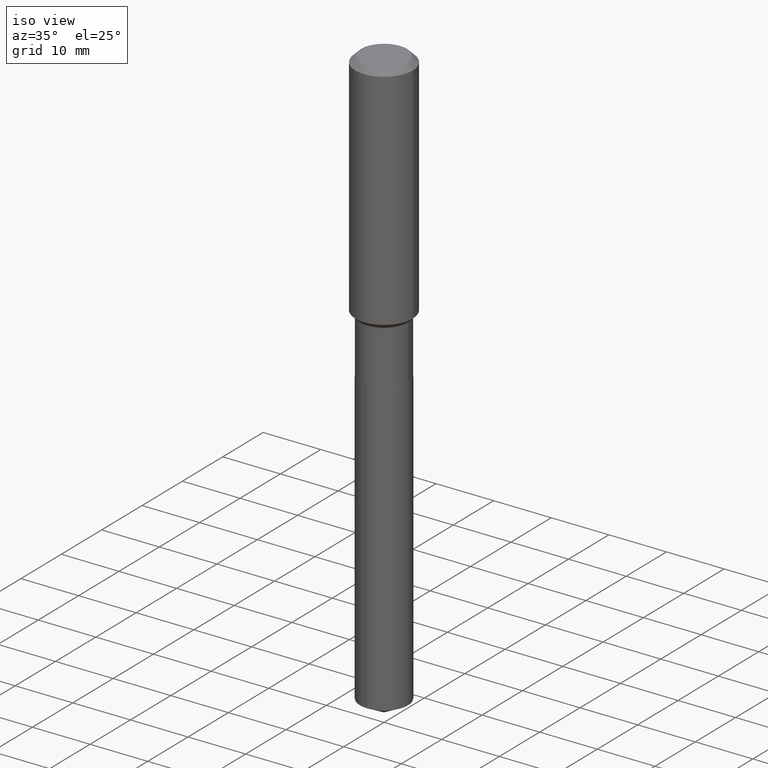
[diagram: clean part render]
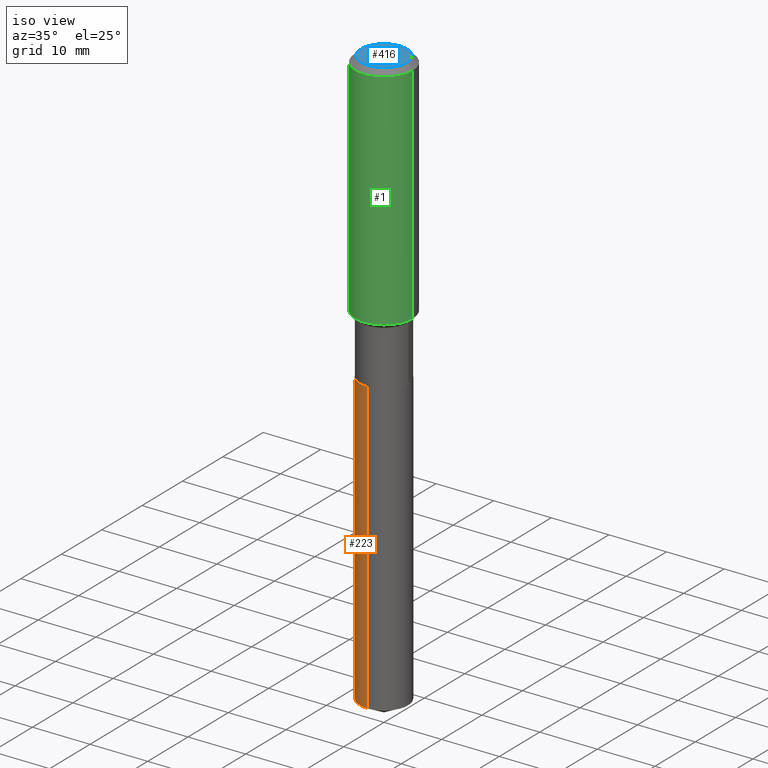
[diagram: same view with three faces highlighted in distinct colors, each labeled with its STEP entity id]
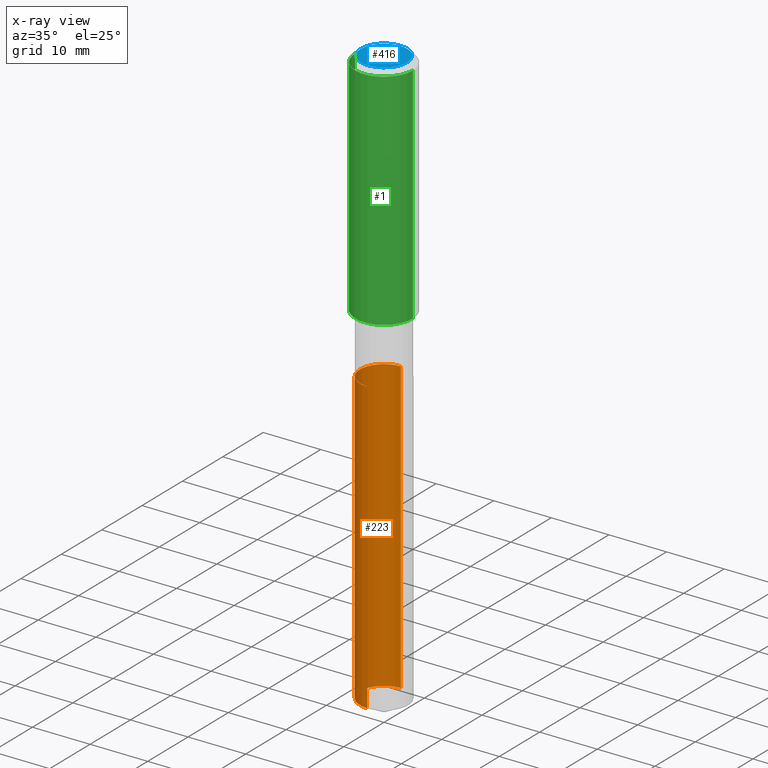
[diagram: x-ray of the same camera — body ghosted, the three highlighted faces saturated]
A machine part, iso view with three faces highlighted in distinct colors.
The next image is the same camera in x-ray (body ghosted, the three faces saturated) — at least one of them is partly hidden behind the body in this view.
Their STEP definitions:

[orange] entity #223 — the highlighted cylindrical surface (edge-blend (fillet) strip) has radius 4.1669 mm, axis along (-0, 0, 1).
#20 = LINE ( 'NONE', #93, #163 ) ;
#23 = CYLINDRICAL_SURFACE ( 'NONE', #34, 0.1640500000000000014 ) ;
#34 = AXIS2_PLACEMENT_3D ( 'NONE', #334, #172, #363 ) ;
#38 = AXIS2_PLACEMENT_3D ( 'NONE', #257, #184, #267 ) ;
#53 = ORIENTED_EDGE ( 'NONE', *, *, #302, .F. ) ;
#57 = EDGE_CURVE ( 'NONE', #280, #244, #73, .T. ) ;
#58 = VECTOR ( 'NONE', #455, 39.37007874015748143 ) ;
#73 = LINE ( 'NONE', #195, #58 ) ;
#83 = CARTESIAN_POINT ( 'NONE',  ( 1.165645358014541000E-15, 0.1640499999999861236, -3.967773067735935744 ) ) ;
#93 = CARTESIAN_POINT ( 'NONE',  ( 1.165645358014492485E-15, 0.1640499999999930625, -1.981100000000000305 ) ) ;
#109 = CARTESIAN_POINT ( 'NONE',  ( -1.145555027274334830E-15, -0.1640500000000138514, -3.967773067735934855 ) ) ;
#150 = EDGE_CURVE ( 'NONE', #486, #280, #274, .T. ) ;
#163 = VECTOR ( 'NONE', #249, 39.37007874015748143 ) ;
#172 = DIRECTION ( 'NONE',  ( -2.445536461183793297E-29, 3.491384453034385749E-15, 1.000000000000000000 ) ) ;
#184 = DIRECTION ( 'NONE',  ( -2.445536461183793297E-29, 3.491384453034385749E-15, 1.000000000000000000 ) ) ;
#195 = CARTESIAN_POINT ( 'NONE',  ( -1.145555027274383345E-15, -0.1640500000000069125, -1.981099999999999195 ) ) ;
#202 = ORIENTED_EDGE ( 'NONE', *, *, #150, .T. ) ;
#223 = ADVANCED_FACE ( 'NONE', ( #245 ), #23, .T. ) ;
#241 = VERTEX_POINT ( 'NONE', #397 ) ;
#244 = VERTEX_POINT ( 'NONE', #445 ) ;
#245 = FACE_OUTER_BOUND ( 'NONE', #435, .T. ) ;
#249 = DIRECTION ( 'NONE',  ( -2.445536461183793297E-29, 3.491384453034385749E-15, 1.000000000000000000 ) ) ;
#250 = DIRECTION ( 'NONE',  ( -6.982962677686265133E-15, -1.000000000000000000, 3.330506545156066257E-15 ) ) ;
#257 = CARTESIAN_POINT ( 'NONE',  ( 4.844718251933373369E-29, -6.916973680382155175E-15, -1.981099999999999861 ) ) ;
#263 = EDGE_CURVE ( 'NONE', #486, #241, #20, .T. ) ;
#264 = CIRCLE ( 'NONE', #38, 0.1640500000000000014 ) ;
#267 = DIRECTION ( 'NONE',  ( -6.982962677686265133E-15, -1.000000000000000000, 3.330506545156066257E-15 ) ) ;
#270 = ORIENTED_EDGE ( 'NONE', *, *, #263, .F. ) ;
#274 = CIRCLE ( 'NONE', #406, 0.1640500000000000014 ) ;
#280 = VERTEX_POINT ( 'NONE', #109 ) ;
#302 = EDGE_CURVE ( 'NONE', #241, #244, #264, .T. ) ;
#320 = ORIENTED_EDGE ( 'NONE', *, *, #57, .T. ) ;
#329 = CARTESIAN_POINT ( 'NONE',  ( 9.703199675533465225E-29, -1.385321314233753012E-14, -3.967773067735935300 ) ) ;
#334 = CARTESIAN_POINT ( 'NONE',  ( 4.844718251933373369E-29, -6.916973680382155175E-15, -1.981099999999999861 ) ) ;
#363 = DIRECTION ( 'NONE',  ( -6.982962677686265133E-15, -1.000000000000000000, 3.330506545156066257E-15 ) ) ;
#397 = CARTESIAN_POINT ( 'NONE',  ( 1.165645358014541395E-15, 0.1640499999999930625, -1.981100000000000305 ) ) ;
#406 = AXIS2_PLACEMENT_3D ( 'NONE', #329, #412, #250 ) ;
#412 = DIRECTION ( 'NONE',  ( -2.445536461183793297E-29, 3.491384453034385749E-15, 1.000000000000000000 ) ) ;
#435 = EDGE_LOOP ( 'NONE', ( #270, #202, #320, #53 ) ) ;
#445 = CARTESIAN_POINT ( 'NONE',  ( -1.145555027274383345E-15, -0.1640500000000069125, -1.981099999999999195 ) ) ;
#455 = DIRECTION ( 'NONE',  ( -2.445536461183793297E-29, 3.491384453034385749E-15, 1.000000000000000000 ) ) ;
#486 = VERTEX_POINT ( 'NONE', #83 ) ;

[blue] entity #416 — the highlighted planar face has unit normal (0, -0, -1).
#16 = VERTEX_POINT ( 'NONE', #265 ) ;
#24 = DIRECTION ( 'NONE',  ( 1.000000000000000000, -6.982962677686265922E-15, 4.876223630392693006E-29 ) ) ;
#63 = CARTESIAN_POINT ( 'NONE',  ( -9.427742298522567634E-47, 1.346031739168368355E-32, 3.855188123715870730E-18 ) ) ;
#140 = CARTESIAN_POINT ( 'NONE',  ( -4.713871149261283817E-47, 6.730158695841841775E-33, 1.927594061857935365E-18 ) ) ;
#159 = EDGE_LOOP ( 'NONE', ( #313, #324 ) ) ;
#160 = AXIS2_PLACEMENT_3D ( 'NONE', #474, #211, #24 ) ;
#187 = EDGE_CURVE ( 'NONE', #16, #464, #446, .T. ) ;
#207 = DIRECTION ( 'NONE',  ( 1.000000000000000000, -6.982962677686265922E-15, 4.876223630392693006E-29 ) ) ;
#208 = CARTESIAN_POINT ( 'NONE',  ( -0.1574800000000000089, 1.168406772637159815E-15, 3.855188123707939751E-18 ) ) ;
#211 = DIRECTION ( 'NONE',  ( -2.445468806185136597E-29, 3.491481338843145583E-15, 1.000000000000000000 ) ) ;
#214 = EDGE_CURVE ( 'NONE', #464, #16, #430, .T. ) ;
#265 = CARTESIAN_POINT ( 'NONE',  ( 0.1574800000000000089, -1.284169937930321386E-15, 3.855188123724205385E-18 ) ) ;
#293 = DIRECTION ( 'NONE',  ( 2.438088387897960049E-29, -3.491481338843145188E-15, -1.000000000000000000 ) ) ;
#295 = PLANE ( 'NONE',  #444 ) ;
#313 = ORIENTED_EDGE ( 'NONE', *, *, #214, .T. ) ;
#321 = AXIS2_PLACEMENT_3D ( 'NONE', #63, #478, #207 ) ;
#324 = ORIENTED_EDGE ( 'NONE', *, *, #187, .T. ) ;
#416 = ADVANCED_FACE ( 'NONE', ( #451 ), #295, .F. ) ;
#424 = DIRECTION ( 'NONE',  ( -1.000000000000000000, 6.982962677686265922E-15, -4.876176775795935793E-29 ) ) ;
#430 = CIRCLE ( 'NONE', #321, 0.1574800000000000089 ) ;
#444 = AXIS2_PLACEMENT_3D ( 'NONE', #140, #293, #424 ) ;
#446 = CIRCLE ( 'NONE', #160, 0.1574800000000000089 ) ;
#451 = FACE_OUTER_BOUND ( 'NONE', #159, .T. ) ;
#464 = VERTEX_POINT ( 'NONE', #208 ) ;
#474 = CARTESIAN_POINT ( 'NONE',  ( -9.427742298522567634E-47, 1.346031739168368355E-32, 3.855188123715870730E-18 ) ) ;
#478 = DIRECTION ( 'NONE',  ( -2.445468806185136597E-29, 3.491481338843145583E-15, 1.000000000000000000 ) ) ;

[green] entity #1 — the highlighted cylindrical surface (edge-blend (fillet) strip) has radius 5 mm, axis along (-0, 0, 1).
#1 = ADVANCED_FACE ( 'NONE', ( #239 ), #153, .T. ) ;
#6 = LINE ( 'NONE', #74, #443 ) ;
#17 = CARTESIAN_POINT ( 'NONE',  ( -0.1968500000000001915, -4.086413807978820996E-15, -1.570999999999999508 ) ) ;
#49 = LINE ( 'NONE', #114, #213 ) ;
#65 = AXIS2_PLACEMENT_3D ( 'NONE', #294, #186, #75 ) ;
#74 = CARTESIAN_POINT ( 'NONE',  ( -0.1968500000000001082, 1.398703375343757985E-15, -9.682923725166787881E-30 ) ) ;
#75 = DIRECTION ( 'NONE',  ( 1.000000000000000000, -6.982962677686266711E-15, 0.000000000000000000 ) ) ;
#82 = CARTESIAN_POINT ( 'NONE',  ( 0.000000000000000000, 0.000000000000000000, 0.000000000000000000 ) ) ;
#86 = DIRECTION ( 'NONE',  ( 1.000000000000000000, -6.982962677686266711E-15, 0.000000000000000000 ) ) ;
#104 = CARTESIAN_POINT ( 'NONE',  ( 3.841831494516847952E-29, -5.485117183322580361E-15, -1.570999999999999508 ) ) ;
#108 = EDGE_CURVE ( 'NONE', #197, #315, #6, .T. ) ;
#114 = CARTESIAN_POINT ( 'NONE',  ( 0.1968500000000001082, -1.374596203102542397E-15, 9.598753983154305062E-30 ) ) ;
#130 = CARTESIAN_POINT ( 'NONE',  ( 0.1968500000000001915, -6.859713386425121969E-15, -1.570999999999999508 ) ) ;
#138 = CARTESIAN_POINT ( 'NONE',  ( -0.1968500000000000527, -1.412585026472659394E-15, -0.03937000000000027283 ) ) ;
#153 = CYLINDRICAL_SURFACE ( 'NONE', #360, 0.1968500000000001082 ) ;
#170 = DIRECTION ( 'NONE',  ( -2.445468806185136597E-29, 3.491481338843145583E-15, 1.000000000000000000 ) ) ;
#171 = ORIENTED_EDGE ( 'NONE', *, *, #459, .T. ) ;
#186 = DIRECTION ( 'NONE',  ( -2.445468806185136597E-29, 3.491481338843145583E-15, 1.000000000000000000 ) ) ;
#197 = VERTEX_POINT ( 'NONE', #17 ) ;
#199 = VERTEX_POINT ( 'NONE', #130 ) ;
#213 = VECTOR ( 'NONE', #364, 39.37007874015748143 ) ;
#224 = CARTESIAN_POINT ( 'NONE',  ( 0.1968500000000000527, -1.512055823412797583E-15, -0.03937000000000027283 ) ) ;
#239 = FACE_OUTER_BOUND ( 'NONE', #469, .T. ) ;
#273 = DIRECTION ( 'NONE',  ( -2.445468806185136877E-29, 3.491481338843145188E-15, 1.000000000000000000 ) ) ;
#294 = CARTESIAN_POINT ( 'NONE',  ( 9.627810689950950651E-31, -1.374596203102555808E-16, -0.03937000000000027283 ) ) ;
#298 = ORIENTED_EDGE ( 'NONE', *, *, #108, .F. ) ;
#304 = CIRCLE ( 'NONE', #65, 0.1968500000000000527 ) ;
#305 = CIRCLE ( 'NONE', #367, 0.1968500000000001915 ) ;
#306 = DIRECTION ( 'NONE',  ( -2.445468806185136597E-29, 3.491481338843145583E-15, 1.000000000000000000 ) ) ;
#315 = VERTEX_POINT ( 'NONE', #138 ) ;
#318 = ORIENTED_EDGE ( 'NONE', *, *, #489, .T. ) ;
#330 = EDGE_CURVE ( 'NONE', #315, #365, #304, .T. ) ;
#360 = AXIS2_PLACEMENT_3D ( 'NONE', #82, #306, #423 ) ;
#362 = ORIENTED_EDGE ( 'NONE', *, *, #330, .F. ) ;
#364 = DIRECTION ( 'NONE',  ( -2.445468806185136877E-29, 3.491481338843145188E-15, 1.000000000000000000 ) ) ;
#365 = VERTEX_POINT ( 'NONE', #224 ) ;
#367 = AXIS2_PLACEMENT_3D ( 'NONE', #104, #170, #86 ) ;
#423 = DIRECTION ( 'NONE',  ( 1.000000000000000000, -6.982962677686266711E-15, 4.876176775795935793E-29 ) ) ;
#443 = VECTOR ( 'NONE', #273, 39.37007874015748143 ) ;
#459 = EDGE_CURVE ( 'NONE', #197, #199, #305, .T. ) ;
#469 = EDGE_LOOP ( 'NONE', ( #298, #171, #318, #362 ) ) ;
#489 = EDGE_CURVE ( 'NONE', #199, #365, #49, .T. ) ;